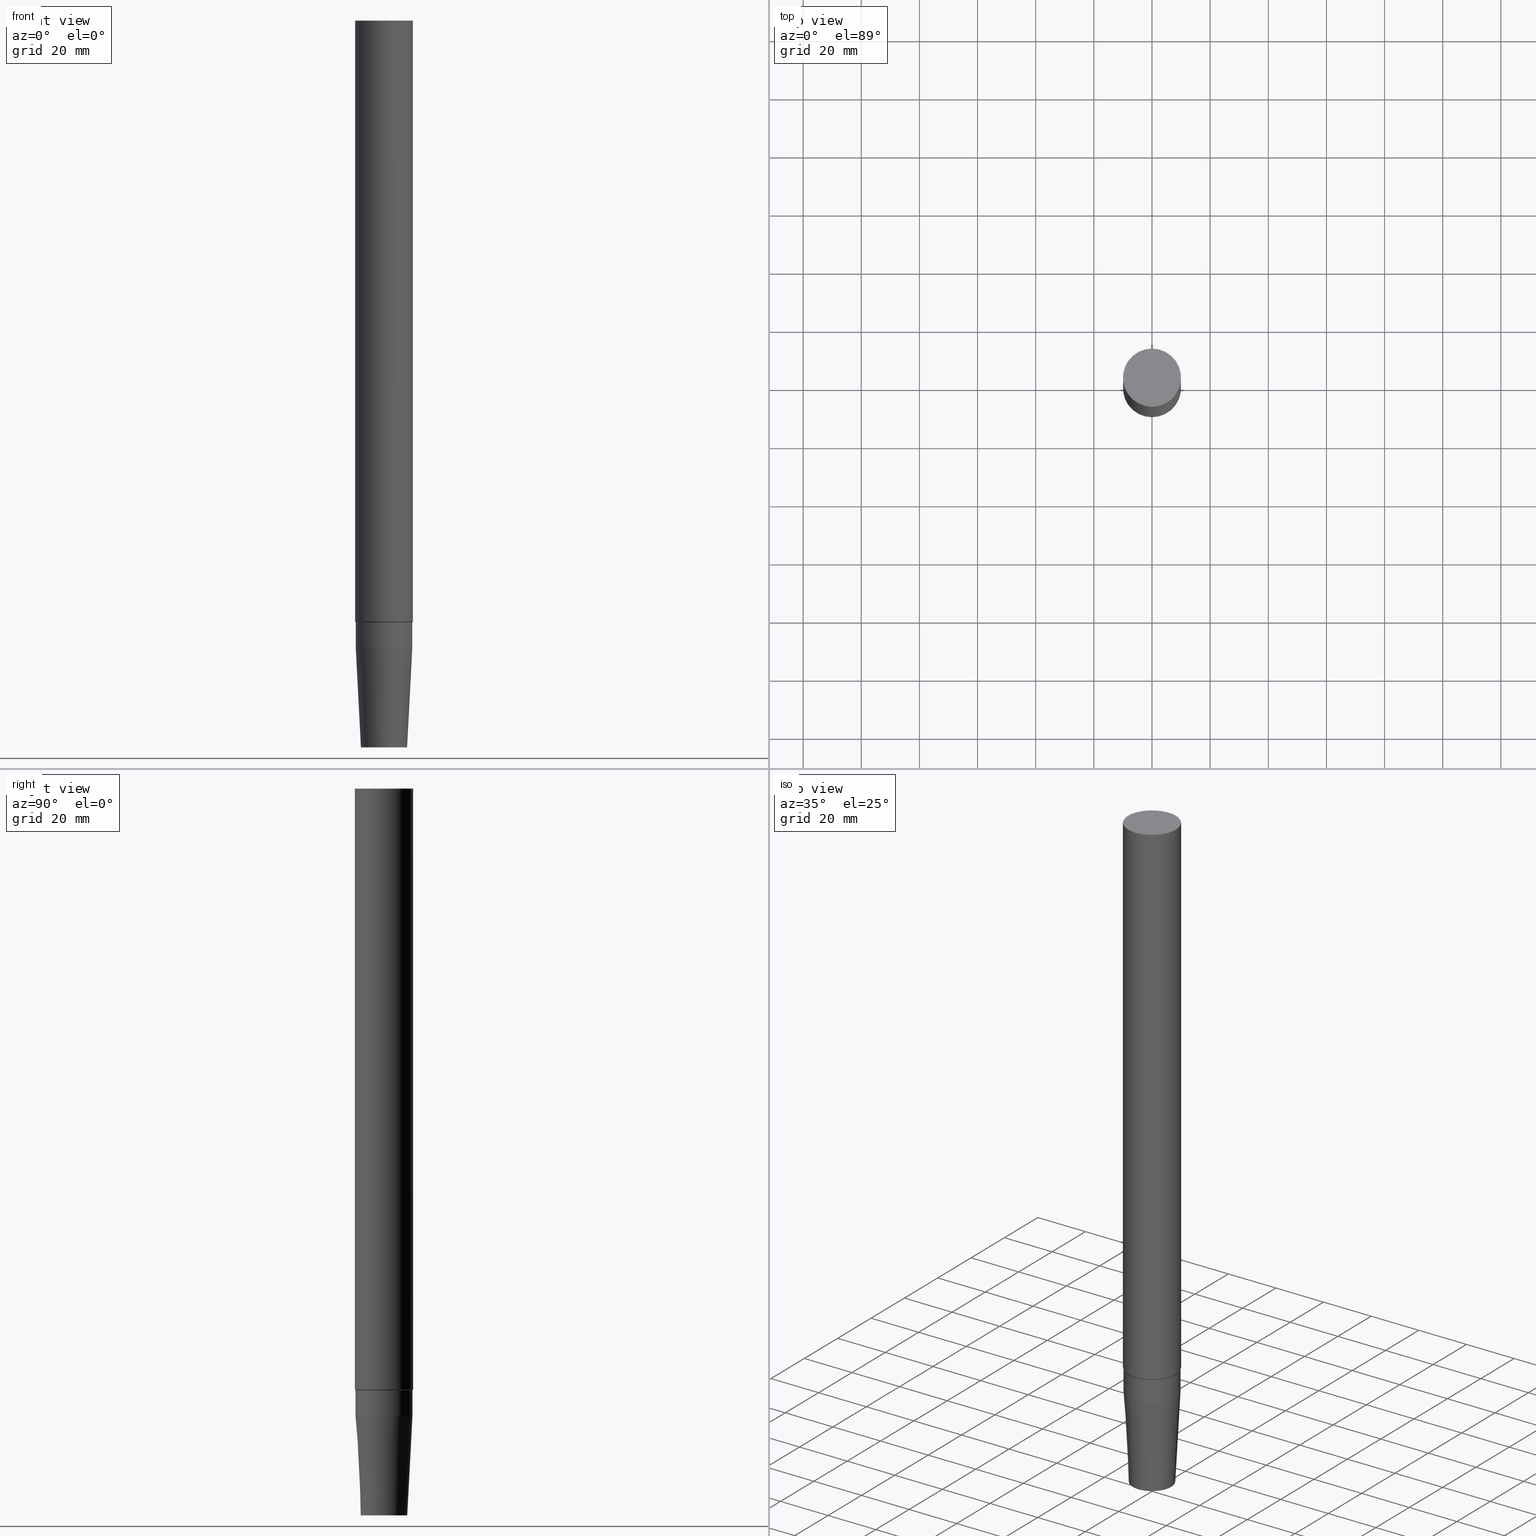
[diagram: canonical four-view strip — front | top / right | iso, engineering-drawing reading convention]
A machine part, canonical four-view strip (front | top / right | iso — engineering-drawing reading convention). The complete STEP part file that produces these views, byte-faithful:
ISO-10303-21;
HEADER;
FILE_DESCRIPTION((''),'1');
FILE_NAME('//Big_tech03/bigt/Translate/BIG-HP/\X2\30C030A630F330ED30FC30C930C730FC30BF\X0\/201309/ST/14_\X2\713C304D30703081FF81FF6CFF6FFF78\X0\SRC/02_\X2\FF7DFF98FF91FF80FF72FF8CFF9F\X0\/ST20-SRC10S-250.stp','2013-09-19T06:25:47',(''),(''),'Spatial Interop R18','Kubotek KeyCreator V8.5.1 (14335)',' ');
FILE_SCHEMA(('CONFIG_CONTROL_DESIGN'));
ENDSEC;
DATA;
#1=DESIGN_CONTEXT('',#27,'design');
#2=APPLICATION_PROTOCOL_DEFINITION('INTERNATIONAL STANDARD','config_control_design',1994,#27);
#3=PRODUCT_CATEGORY_RELATIONSHIP('NONE','NONE',#28,#29);
#4=DATE_AND_TIME(#30,#31);
#5=DATE_TIME_ROLE('creation_date');
#6=DATE_TIME_ROLE('classification_date');
#7=PERSON_AND_ORGANIZATION_ROLE('creator');
#8=PERSON_AND_ORGANIZATION_ROLE('design_supplier');
#9=PERSON_AND_ORGANIZATION_ROLE('classification_officer');
#10=PERSON_AND_ORGANIZATION_ROLE('design_owner');
#11=APPROVAL_PERSON_ORGANIZATION(#32,#33,#34);
#12=APPROVAL_DATE_TIME(#4,#33);
#13=CC_DESIGN_APPROVAL(#33,(#35,#36,#37));
#14=CC_DESIGN_DATE_AND_TIME_ASSIGNMENT(#4,#5,(#37));
#15=CC_DESIGN_DATE_AND_TIME_ASSIGNMENT(#4,#6,(#35));
#16=CC_DESIGN_PERSON_AND_ORGANIZATION_ASSIGNMENT(#32,#10,(#38));
#17=CC_DESIGN_PERSON_AND_ORGANIZATION_ASSIGNMENT(#32,#7,(#37));
#18=CC_DESIGN_PERSON_AND_ORGANIZATION_ASSIGNMENT(#32,#7,(#36));
#19=CC_DESIGN_PERSON_AND_ORGANIZATION_ASSIGNMENT(#32,#8,(#36));
#20=CC_DESIGN_SECURITY_CLASSIFICATION(#35,(#36));
#21=CC_DESIGN_PERSON_AND_ORGANIZATION_ASSIGNMENT(#32,#9,(#35));
#22=SHAPE_DEFINITION_REPRESENTATION(#39,#40);
#23= (GEOMETRIC_REPRESENTATION_CONTEXT(3)GLOBAL_UNCERTAINTY_ASSIGNED_CONTEXT((#43))GLOBAL_UNIT_ASSIGNED_CONTEXT((#45,#46,#47))REPRESENTATION_CONTEXT('NONE','WORKSPACE'));
#27=APPLICATION_CONTEXT('CONFIGURATION CONTROLLED 3D DESIGNS OF MECHANICAL PARTS AND ASSEMBLIES');
#28=PRODUCT_CATEGORY('part','NONE');
#29=PRODUCT_RELATED_PRODUCT_CATEGORY('detail',' ',(#38));
#30=CALENDAR_DATE(2013,19,8);
#31=LOCAL_TIME(15,25,47.0,#49);
#32=PERSON_AND_ORGANIZATION(#50,#51);
#33=APPROVAL(#52,'SOLID MODEL');
#34=APPROVAL_ROLE('APPROVED');
#35=SECURITY_CLASSIFICATION('','',#53);
#36=PRODUCT_DEFINITION_FORMATION_WITH_SPECIFIED_SOURCE(' ','NONE',#38,.NOT_KNOWN.);
#37=PRODUCT_DEFINITION('NONE','NONE',#36,#1);
#38=PRODUCT('1','1','PART-1-DESC',(#54));
#39=PRODUCT_DEFINITION_SHAPE('NONE','NONE',#37);
#40=ADVANCED_BREP_SHAPE_REPRESENTATION('1',(#55,#56),#23);
#43=UNCERTAINTY_MEASURE_WITH_UNIT(LENGTH_MEASURE(1.0E-006),#45,'','');
#45= (CONVERSION_BASED_UNIT('MILLIMETRE',#59)LENGTH_UNIT()NAMED_UNIT(#62));
#46= (NAMED_UNIT(#64)PLANE_ANGLE_UNIT()SI_UNIT($,.RADIAN.));
#47= (NAMED_UNIT(#64)SOLID_ANGLE_UNIT()SI_UNIT($,.STERADIAN.));
#49=COORDINATED_UNIVERSAL_TIME_OFFSET(9,0,.AHEAD.);
#50=PERSON('','UNSPECIFIED',$,$,$,$);
#51=ORGANIZATION('UNSPECIFIED','UNSPECIFIED','UNSPECIFIED');
#52=APPROVAL_STATUS('approved');
#53=SECURITY_CLASSIFICATION_LEVEL('unclassified');
#54=MECHANICAL_CONTEXT('',#27,'mechanical');
#55=MANIFOLD_SOLID_BREP('1',#70);
#56=AXIS2_PLACEMENT_3D('',#71,#72,#73);
#59=LENGTH_MEASURE_WITH_UNIT(LENGTH_MEASURE(1.0),#74);
#62=DIMENSIONAL_EXPONENTS(1.0,0.0,0.0,0.0,0.0,0.0,0.0);
#64=DIMENSIONAL_EXPONENTS(0.0,0.0,0.0,0.0,0.0,0.0,0.0);
#70=CLOSED_SHELL('',(#75,#76,#77,#78,#79,#80));
#71=CARTESIAN_POINT('',(0.0,0.0,0.0));
#72=DIRECTION('',(0.0,0.0,1.0));
#73=DIRECTION('',(1.0,0.0,0.0));
#74= (NAMED_UNIT(#62)LENGTH_UNIT()SI_UNIT(.MILLI.,.METRE.));
#75=ADVANCED_FACE('',(#82),#83,.T.);
#76=ADVANCED_FACE('',(#84,#85),#86,.T.);
#77=ADVANCED_FACE('',(#87,#88),#89,.T.);
#78=ADVANCED_FACE('',(#90,#91),#92,.T.);
#79=ADVANCED_FACE('',(#93,#94),#95,.T.);
#80=ADVANCED_FACE('',(#96),#97,.T.);
#82=FACE_OUTER_BOUND('',#98,.T.);
#83=PLANE('',#99);
#84=FACE_BOUND('',#100,.T.);
#85=FACE_BOUND('',#101,.T.);
#86=CYLINDRICAL_SURFACE('',#102,10.0);
#87=FACE_BOUND('',#103,.T.);
#88=FACE_BOUND('',#104,.T.);
#89=CONICAL_SURFACE('',#105,9.9,0.52359877749051);
#90=FACE_BOUND('',#106,.T.);
#91=FACE_BOUND('',#107,.T.);
#92=CYLINDRICAL_SURFACE('',#108,9.8);
#93=FACE_BOUND('',#109,.T.);
#94=FACE_BOUND('',#110,.T.);
#95=CONICAL_SURFACE('',#111,8.9,0.0523598775566508);
#96=FACE_OUTER_BOUND('',#112,.T.);
#97=PLANE('',#113);
#98=EDGE_LOOP('',(#114));
#99=AXIS2_PLACEMENT_3D('',#115,#116,#117);
#100=EDGE_LOOP('',(#118));
#101=EDGE_LOOP('',(#119));
#102=AXIS2_PLACEMENT_3D('',#120,#121,#122);
#103=EDGE_LOOP('',(#123));
#104=EDGE_LOOP('',(#124));
#105=AXIS2_PLACEMENT_3D('',#125,#126,#127);
#106=EDGE_LOOP('',(#128));
#107=EDGE_LOOP('',(#129));
#108=AXIS2_PLACEMENT_3D('',#130,#131,#132);
#109=EDGE_LOOP('',(#133));
#110=EDGE_LOOP('',(#134));
#111=AXIS2_PLACEMENT_3D('',#135,#136,#137);
#112=EDGE_LOOP('',(#138));
#113=AXIS2_PLACEMENT_3D('',#139,#140,#141);
#114=ORIENTED_EDGE('',*,*,#142,.F.);
#115=CARTESIAN_POINT('',(-1.53080849893419E-014,4.99999999999997,250.0));
#116=DIRECTION('',(-6.12323399573677E-017,-1.22464679914735E-016,1.0));
#117=DIRECTION('',(1.23259516440783E-032,-1.0,-1.22464679914735E-016));
#118=ORIENTED_EDGE('',*,*,#143,.F.);
#119=ORIENTED_EDGE('',*,*,#142,.T.);
#120=CARTESIAN_POINT('',(-8.98114355609527E-015,-1.79622871121905E-014,146.67320508));
#121=DIRECTION('',(-6.12323399573677E-017,-1.22464679914735E-016,1.0));
#122=DIRECTION('',(-1.23259516440783E-032,1.0,1.22464679914735E-016));
#123=ORIENTED_EDGE('',*,*,#144,.F.);
#124=ORIENTED_EDGE('',*,*,#143,.T.);
#125=CARTESIAN_POINT('',(-2.64359637050771E-015,-5.28719274101542E-015,43.17320508));
#126=DIRECTION('',(-6.12323399573677E-017,-1.22464679914735E-016,1.0));
#127=DIRECTION('',(-1.23259516440783E-032,1.0,1.22464679914735E-016));
#128=ORIENTED_EDGE('',*,*,#145,.F.);
#129=ORIENTED_EDGE('',*,*,#144,.T.);
#130=CARTESIAN_POINT('',(-2.36803969273975E-015,-4.73607938547949E-015,38.67302302));
#131=DIRECTION('',(-6.12323399573677E-017,-1.22464679914735E-016,1.0));
#132=DIRECTION('',(-1.23259516440783E-032,1.0,1.22464679914735E-016));
#133=ORIENTED_EDGE('',*,*,#146,.F.);
#134=ORIENTED_EDGE('',*,*,#145,.T.);
#135=CARTESIAN_POINT('',(-1.05154438365634E-015,-2.10308876731268E-015,17.17302302));
#136=DIRECTION('',(-6.12323399573676E-017,-1.22464679914735E-016,1.0));
#137=DIRECTION('',(-1.23259516440783E-032,1.0,1.22464679914735E-016));
#138=ORIENTED_EDGE('',*,*,#146,.T.);
#139=CARTESIAN_POINT('',(0.0,4.0,0.0));
#140=DIRECTION('',(6.12323399573677E-017,1.22464679914735E-016,-1.0));
#141=DIRECTION('',(-1.23259516440783E-032,1.0,1.22464679914735E-016));
#142=EDGE_CURVE('',#147,#147,#148,.T.);
#143=EDGE_CURVE('',#149,#149,#150,.T.);
#144=EDGE_CURVE('',#151,#151,#152,.T.);
#145=EDGE_CURVE('',#153,#153,#154,.T.);
#146=EDGE_CURVE('',#155,#155,#156,.T.);
#147=VERTEX_POINT('',#157);
#148=CIRCLE('',#158,10.0);
#149=VERTEX_POINT('',#159);
#150=CIRCLE('',#160,10.0);
#151=VERTEX_POINT('',#161);
#152=CIRCLE('',#162,9.8);
#153=VERTEX_POINT('',#163);
#154=CIRCLE('',#164,9.8);
#155=VERTEX_POINT('',#165);
#156=CIRCLE('',#166,8.0);
#157=CARTESIAN_POINT('',(-1.53080849893419E-014,9.99999999999997,250.0));
#158=AXIS2_PLACEMENT_3D('',#167,#168,#169);
#159=CARTESIAN_POINT('',(-2.65420212284862E-015,9.99999999999999,43.34641016));
#160=AXIS2_PLACEMENT_3D('',#170,#171,#172);
#161=CARTESIAN_POINT('',(-2.63299061816681E-015,9.8,43.0));
#162=AXIS2_PLACEMENT_3D('',#173,#174,#175);
#163=CARTESIAN_POINT('',(-2.10308876731268E-015,9.8,34.34604604));
#164=AXIS2_PLACEMENT_3D('',#176,#177,#178);
#165=CARTESIAN_POINT('',(0.0,8.0,0.0));
#166=AXIS2_PLACEMENT_3D('',#179,#180,#181);
#167=CARTESIAN_POINT('',(-1.53080849893419E-014,-3.06161699786838E-014,250.0));
#168=DIRECTION('',(6.12323399573677E-017,1.22464679914735E-016,-1.0));
#169=DIRECTION('',(-1.23259516440783E-032,1.0,1.22464679914735E-016));
#170=CARTESIAN_POINT('',(-2.65420212284862E-015,-5.30840424569723E-015,43.34641016));
#171=DIRECTION('',(6.12323399573677E-017,1.22464679914735E-016,-1.0));
#172=DIRECTION('',(-1.23259516440783E-032,1.0,1.22464679914735E-016));
#173=CARTESIAN_POINT('',(-2.63299061816681E-015,-5.26598123633362E-015,43.0));
#174=DIRECTION('',(6.12323399573677E-017,1.22464679914735E-016,-1.0));
#175=DIRECTION('',(-1.23259516440783E-032,1.0,1.22464679914735E-016));
#176=CARTESIAN_POINT('',(-2.10308876731268E-015,-4.20617753462536E-015,34.34604604));
#177=DIRECTION('',(6.12323399573677E-017,1.22464679914735E-016,-1.0));
#178=DIRECTION('',(-1.23259516440783E-032,1.0,1.22464679914735E-016));
#179=CARTESIAN_POINT('',(0.0,0.0,0.0));
#180=DIRECTION('',(6.12323399573677E-017,1.22464679914735E-016,-1.0));
#181=DIRECTION('',(-1.23259516440783E-032,1.0,1.22464679914735E-016));
ENDSEC;
END-ISO-10303-21;
